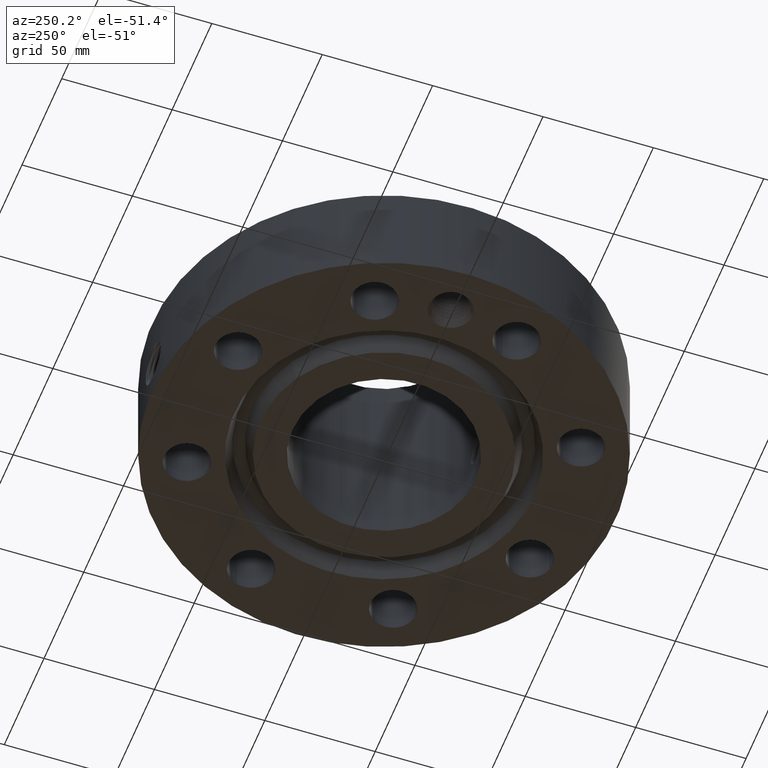
[diagram: clean part render]
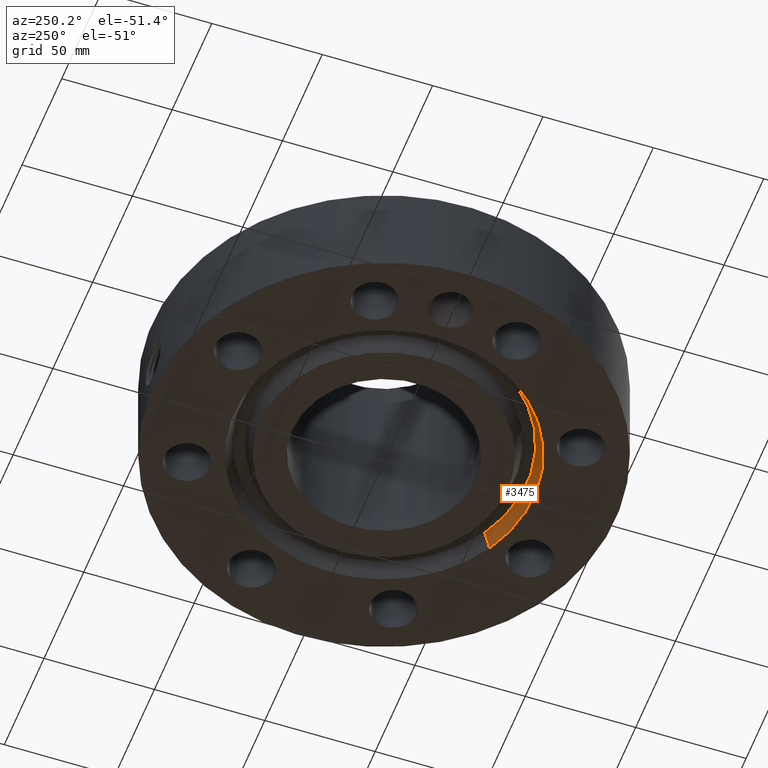
[diagram: same view with one face highlighted and labeled with its STEP entity id]
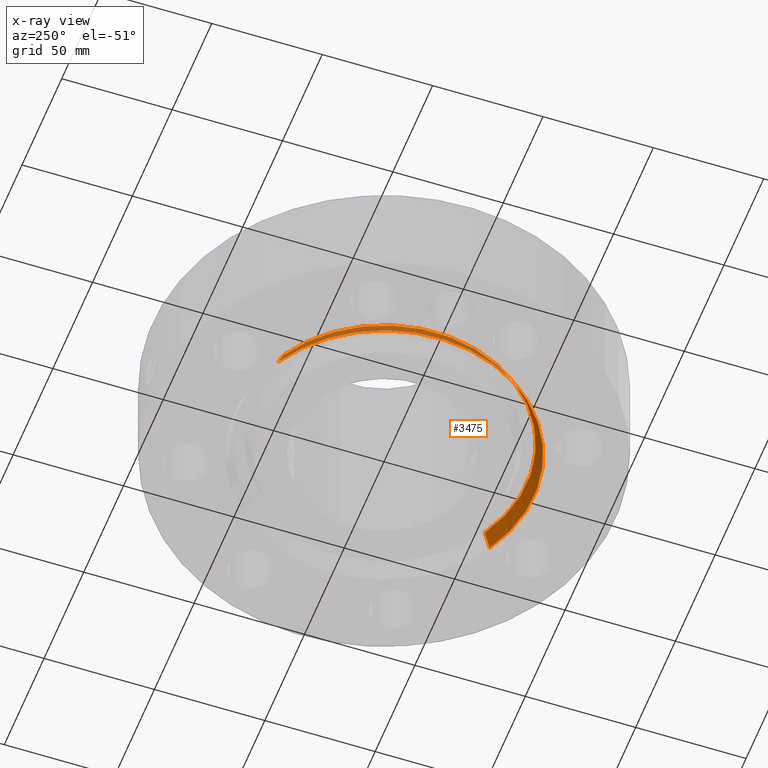
[diagram: x-ray of the same camera — body ghosted, the highlighted face saturated]
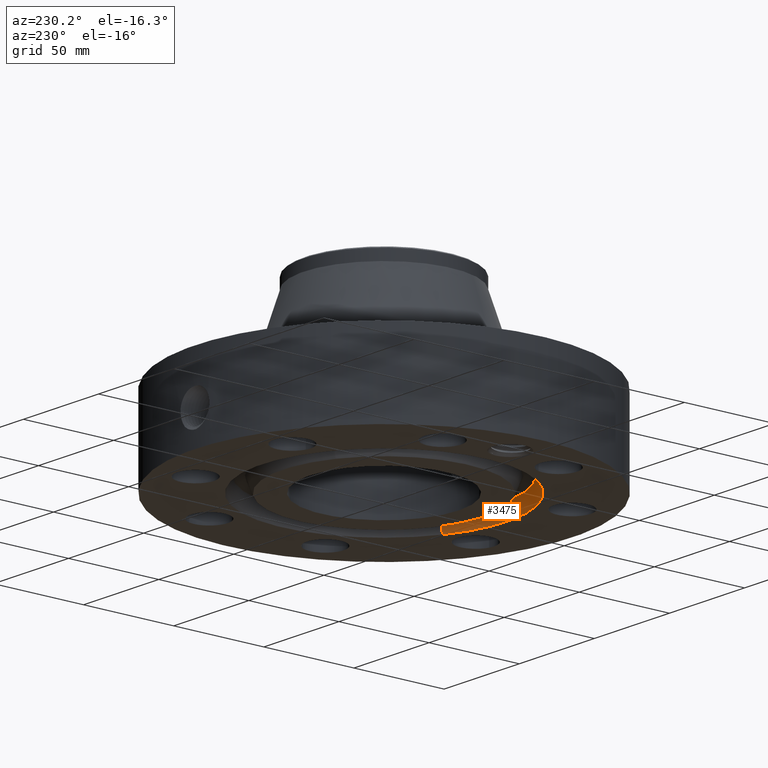
[diagram: same view with one face highlighted and labeled with its STEP entity id]
A machine part, auxiliary view. The second image highlights one B-rep face of the part: STEP entity #3475.
The next image is the same camera in x-ray: the body ghosted, the highlighted face saturated — about 0% of this face is hidden behind the body in this view.
A second angle (auxiliary view) of the same face is appended — the face is thin or edge-on in the first view.
In plain terms, the highlighted conical surface has half-angle 23 deg.
Its self-contained STEP definition (entity closure, byte-faithful):
#2635=AXIS2_PLACEMENT_3D('Circle Axis2P3D',#2633,#2634,$) ;
#3436=AXIS2_PLACEMENT_3D('Cone Axis2P3D',#3433,#3434,#3435) ;
#3466=AXIS2_PLACEMENT_3D('Circle Axis2P3D',#3464,#3465,$) ;
#2611=CARTESIAN_POINT('Vertex',(1.22117191556,-2.23534019754,0.294112664984)) ;
#2613=CARTESIAN_POINT('Vertex',(-1.22117191556,2.23534019754,0.294112664984)) ;
#2633=CARTESIAN_POINT('Axis2P3D Location',(0.,0.,0.294112664984)) ;
#3433=CARTESIAN_POINT('Axis2P3D Location',(0.,0.,0.294112664984)) ;
#3442=CARTESIAN_POINT('Vertex',(-1.28102503916,2.34490060538,-6.99353086378E-017)) ;
#3444=CARTESIAN_POINT('Vertex',(1.28102503916,-2.34490060538,0.)) ;
#3447=CARTESIAN_POINT('Line Origine',(1.25109847736,-2.29012040146,0.147056332492)) ;
#3452=CARTESIAN_POINT('Line Origine',(-1.25109847736,2.29012040146,0.147056332492)) ;
#3464=CARTESIAN_POINT('Axis2P3D Location',(0.,0.,0.)) ;
#2634=DIRECTION('Axis2P3D Direction',(0.,0.,0.0393700787402)) ;
#3434=DIRECTION('Axis2P3D Direction',(-0.,-0.,-0.0393700787402)) ;
#3435=DIRECTION('Axis2P3D XDirection',(0.0188750212049,-0.0345504945626,0.)) ;
#3448=DIRECTION('Vector Direction',(0.00737505833565,-0.0134999537303,-0.0362403485611)) ;
#3453=DIRECTION('Vector Direction',(-0.00737505833565,0.0134999537303,-0.0362403485611)) ;
#3465=DIRECTION('Axis2P3D Direction',(0.,0.,-0.0393700787402)) ;
#3449=VECTOR('Line Direction',#3448,0.0393700787402) ;
#3454=VECTOR('Line Direction',#3453,0.0393700787402) ;
#3470=ORIENTED_EDGE('',*,*,#3468,.T.) ;
#3471=ORIENTED_EDGE('',*,*,#3456,.T.) ;
#3472=ORIENTED_EDGE('',*,*,#2637,.T.) ;
#3473=ORIENTED_EDGE('',*,*,#3451,.F.) ;
#3475=ADVANCED_FACE('PartBody',(#3474),#3437,.F.) ;
#2636=CIRCLE('generated circle',#2635,2.5471565806) ;
#3467=CIRCLE('generated circle',#3466,2.67200000001) ;
#3437=CONICAL_SURFACE('Cone',#3436,2.5471565806,0.401425727959) ;
#2637=EDGE_CURVE('',#2614,#2612,#2636,.T.) ;
#3451=EDGE_CURVE('',#3445,#2612,#3450,.F.) ;
#3456=EDGE_CURVE('',#3443,#2614,#3455,.F.) ;
#3468=EDGE_CURVE('',#3445,#3443,#3467,.T.) ;
#3469=EDGE_LOOP('',(#3470,#3471,#3472,#3473)) ;
#3474=FACE_OUTER_BOUND('',#3469,.T.) ;
#3450=LINE('Line',#3447,#3449) ;
#3455=LINE('Line',#3452,#3454) ;
#2612=VERTEX_POINT('',#2611) ;
#2614=VERTEX_POINT('',#2613) ;
#3443=VERTEX_POINT('',#3442) ;
#3445=VERTEX_POINT('',#3444) ;